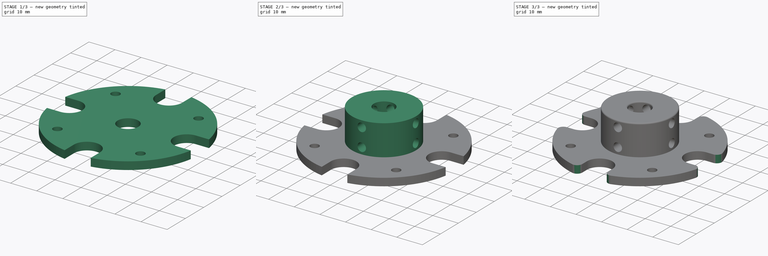
[diagram: build sequence overview — one tinted view per stage of 3, left to right]
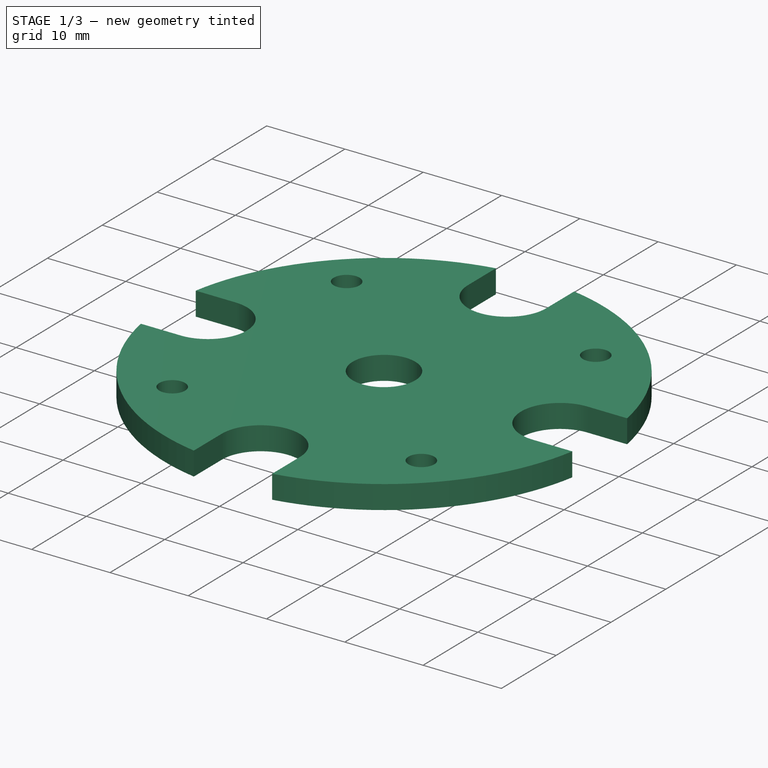
[diagram: stage 1 of 3 — iso view after this stage's code; geometry added in this stage tinted green]
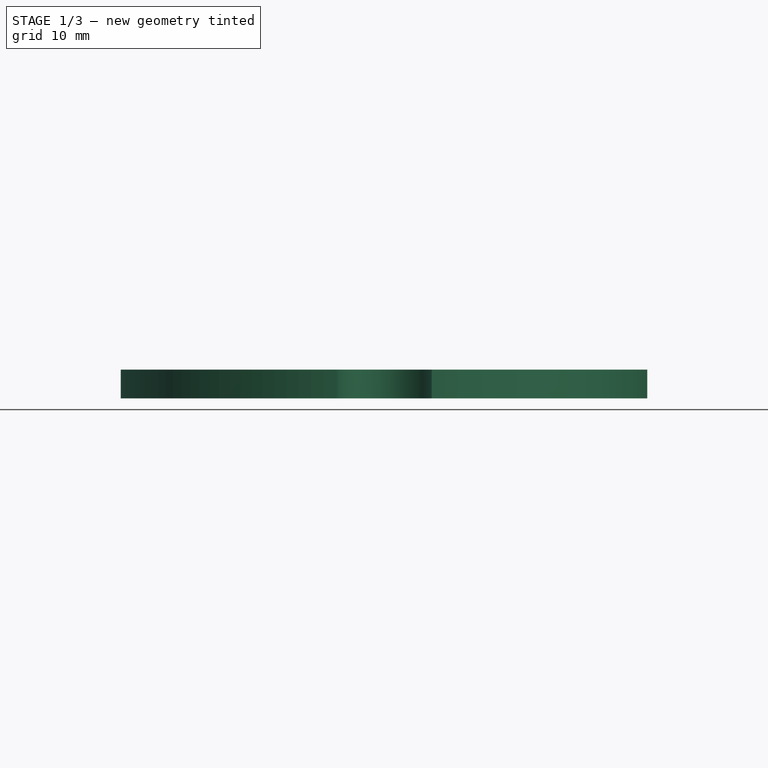
[diagram: stage 1 of 3 — front view after this stage's code; geometry added in this stage tinted green]
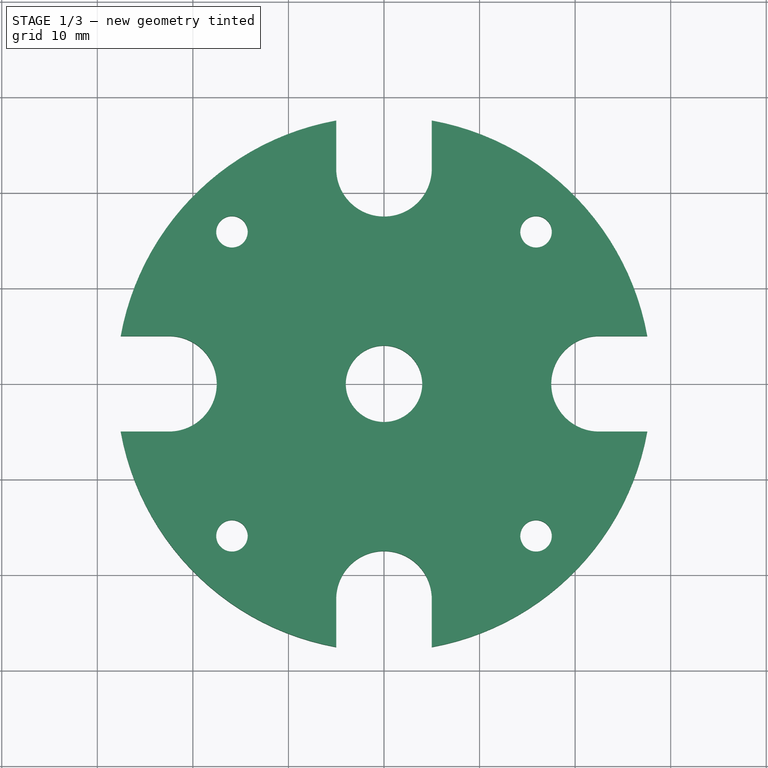
[diagram: stage 1 of 3 — top view after this stage's code; geometry added in this stage tinted green]
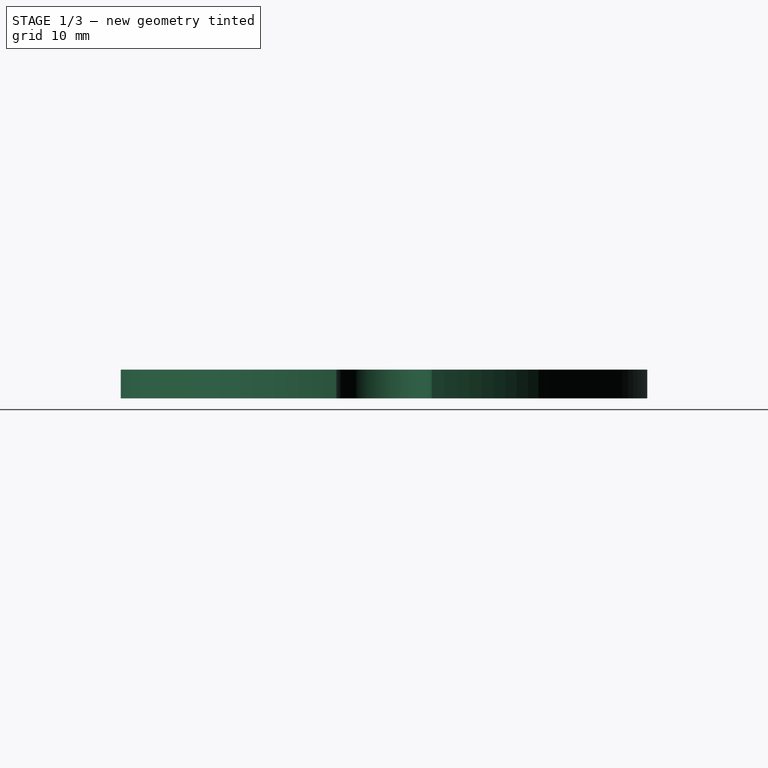
[diagram: stage 1 of 3 — right view after this stage's code; geometry added in this stage tinted green]
FCSTD DOCUMENT  (FreeCAD 0.19R19327 (Git))
Label: Acople motor2
License: All rights reserved
LicenseURL: http://en.wikipedia.org/wiki/All_rights_reserved
objects: Sketcher::SketchObject×4, PartDesign::Pad×2, PartDesign::Pocket×2, PartDesign::Fillet×2, PartDesign::PolarPattern×1, PartDesign::Plane×1, PartDesign::Body×1
note: 17 computed .brp shape members not serialized (recipe doc carries the construction recipe); baked Part::Feature solids carry a one-line shape summary decoded from their .brp

FEATURE [Sketcher::SketchObject] Sketch
  MapMode = 5
  Support = -> [XY_Plane]
  sketch-geometry (26):
    g0: ArcOfCircle CenterX=22.5 CenterY=0 CenterZ=0 NormalX=0 NormalY=0 NormalZ=1 AngleXU=0 Radius=5 StartAngle=1.5708 EndAngle=4.71239
    g1: ArcOfCircle CenterX=0 CenterY=-22.5 CenterZ=0 NormalX=0 NormalY=0 NormalZ=1 AngleXU=0 Radius=5 StartAngle=0 EndAngle=3.14159
    g2: LineSegment StartX=27.55 StartY=-5 StartZ=0 EndX=22.5 EndY=-5 EndZ=0
    g3: LineSegment StartX=5 StartY=-27.55 StartZ=0 EndX=5 EndY=-22.5 EndZ=0
    g4: Circle CenterX=15.9099 CenterY=-15.9099 CenterZ=0 NormalX=0 NormalY=0 NormalZ=1 AngleXU=0 Radius=1.65
    g5: ArcOfCircle CenterX=0 CenterY=0 CenterZ=0 NormalX=0 NormalY=0 NormalZ=1 AngleXU=0 Radius=28 StartAngle=1.75033 EndAngle=2.96206
    g6: LineSegment StartX=-5 StartY=-27.55 StartZ=0 EndX=-5 EndY=-22.5 EndZ=0
    g7: Circle CenterX=0 CenterY=0 CenterZ=0 NormalX=0 NormalY=0 NormalZ=1 AngleXU=0 Radius=4
    g8: LineSegment StartX=22.5 StartY=5 StartZ=0 EndX=27.55 EndY=5 EndZ=0
    g9: ArcOfCircle CenterX=0 CenterY=22.5 CenterZ=0 NormalX=0 NormalY=0 NormalZ=1 AngleXU=0 Radius=5 StartAngle=3.14159 EndAngle=6.28319
    g10: ArcOfCircle CenterX=-22.5 CenterY=0 CenterZ=0 NormalX=0 NormalY=0 NormalZ=1 AngleXU=0 Radius=5 StartAngle=4.71239 EndAngle=7.85398
    g11: Circle [constr] CenterX=0 CenterY=0 CenterZ=0 NormalX=0 NormalY=0 NormalZ=1 AngleXU=0 Radius=22.5
    g12: Circle CenterX=-15.9099 CenterY=-15.9099 CenterZ=0 NormalX=0 NormalY=0 NormalZ=1 AngleXU=0 Radius=1.65
    g13: Circle CenterX=-15.9099 CenterY=15.9099 CenterZ=0 NormalX=0 NormalY=0 NormalZ=1 AngleXU=0 Radius=1.65
    g14: Circle CenterX=15.9099 CenterY=15.9099 CenterZ=0 NormalX=0 NormalY=0 NormalZ=1 AngleXU=0 Radius=1.65
    g15: LineSegment StartX=-27.55 StartY=-5 StartZ=0 EndX=-22.5 EndY=-5 EndZ=0
    g16: LineSegment StartX=-27.55 StartY=5 StartZ=0 EndX=-22.5 EndY=5 EndZ=0
    g17: LineSegment StartX=-5 StartY=22.5 StartZ=0 EndX=-5 EndY=27.55 EndZ=0
    g18: LineSegment StartX=5 StartY=22.5 StartZ=0 EndX=5 EndY=27.55 EndZ=0
    g19: LineSegment [constr] StartX=15.9099 StartY=-15.9099 StartZ=0 EndX=-15.9099 EndY=-15.9099 EndZ=0
    g20: LineSegment [constr] StartX=-15.9099 StartY=-15.9099 StartZ=0 EndX=-15.9099 EndY=15.9099 EndZ=0
    g21: LineSegment [constr] StartX=-15.9099 StartY=15.9099 StartZ=0 EndX=15.9099 EndY=15.9099 EndZ=0
    g22: LineSegment [constr] StartX=15.9099 StartY=15.9099 StartZ=0 EndX=15.9099 EndY=-15.9099 EndZ=0
    g23: ArcOfCircle CenterX=0 CenterY=0 CenterZ=0 NormalX=0 NormalY=0 NormalZ=1 AngleXU=0 Radius=28 StartAngle=0.179534 EndAngle=1.39126
    g24: ArcOfCircle CenterX=0 CenterY=0 CenterZ=0 NormalX=0 NormalY=0 NormalZ=1 AngleXU=0 Radius=28 StartAngle=4.89192 EndAngle=6.10365
    g25: ArcOfCircle CenterX=0 CenterY=0 CenterZ=0 NormalX=0 NormalY=0 NormalZ=1 AngleXU=0 Radius=28 StartAngle=3.32113 EndAngle=4.53285
  constraints (70):
    c: Vertical(g3)
    c: Horizontal(g2)
    c: Radius(g1) = 5
    c: Radius(g0) = 5
    c: PointOnObject(g1,g-2)
    c: Tangent(g1,g3) = -1.5708
    c: Tangent(g0,g2) = 1.5708
    c: Radius(g4) = 1.65
    c: Radius(g5) = 28
    c: Vertical(g6)
    c: Equal(g3,g6)
    c: Coincident(g1,g6)
    c: Coincident(g7,g5)
    c: Radius(g7) = 4
    c: Horizontal(g8)
    c: Coincident(g0,g8)
    c: Equal(g2,g8)
    c: Coincident(g5,g-1)
    c: PointOnObject(g9,g-2)
    c: PointOnObject(g10,g-1)
    c: Coincident(g11,g5)
    c: PointOnObject(g10,g11)
    c: Radius(g11) = 22.5
    c: PointOnObject(g0,g-1)
    c: PointOnObject(g9,g11)
    c: PointOnObject(g0,g11)
    c: PointOnObject(g1,g11)
    c: PointOnObject(g12,g11)
    c: PointOnObject(g13,g11)
    c: PointOnObject(g14,g11)
    c: Equal(g14,g13)
    c: Equal(g13,g12)
    c: Equal(g12,g4)
    c: Horizontal(g15)
    c: Horizontal(g16)
    c: Tangent(g10,g16) = 1.5708
    c: Tangent(g10,g15) = -1.5708
    c: Equal(g10,g9)
    c: Equal(g9,g1)
    c: Vertical(g17)
    c: Vertical(g18)
    c: Tangent(g17,g9) = 1.5708
    c: Tangent(g9,g18) = -1.5708
    c: Coincident(g19,g20)
    c: Coincident(g20,g21)
    c: Coincident(g21,g22)
    c: Coincident(g22,g19)
    c: Horizontal(g19)
    c: Horizontal(g21)
    c: Vertical(g20)
    c: Vertical(g22)
    c: Coincident(g19,g4)
    c: Coincident(g20,g13)
    c: Coincident(g19,g12)
    c: Equal(g22,g21)
    c: Coincident(g14,g21)
    c: Coincident(g5,g17)
    c: Coincident(g23,g18)
    c: Equal(g5,g23)
    c: Coincident(g24,g2)
    c: Coincident(g23,g8)
    c: Coincident(g5,g23)
    c: Equal(g5,g24)
    c: Coincident(g25,g6)
    c: Coincident(g24,g3)
    c: Coincident(g5,g24)
    c: Equal(g5,g25)
    c: Coincident(g5,g16)
    c: Coincident(g25,g15)
    c: Coincident(g5,g25)
FEATURE [PartDesign::Pad] Pad
  Length = 3
  Length2 = 100
  Profile = -> Sketch
  Type = 0
FEATURE [PartDesign::PolarPattern] PolarPattern
  Angle = 360
  Axis = -> Sketch [N_Axis]
  BaseFeature = -> Pad
  Occurrences = 4
  Originals = -> [Pad]
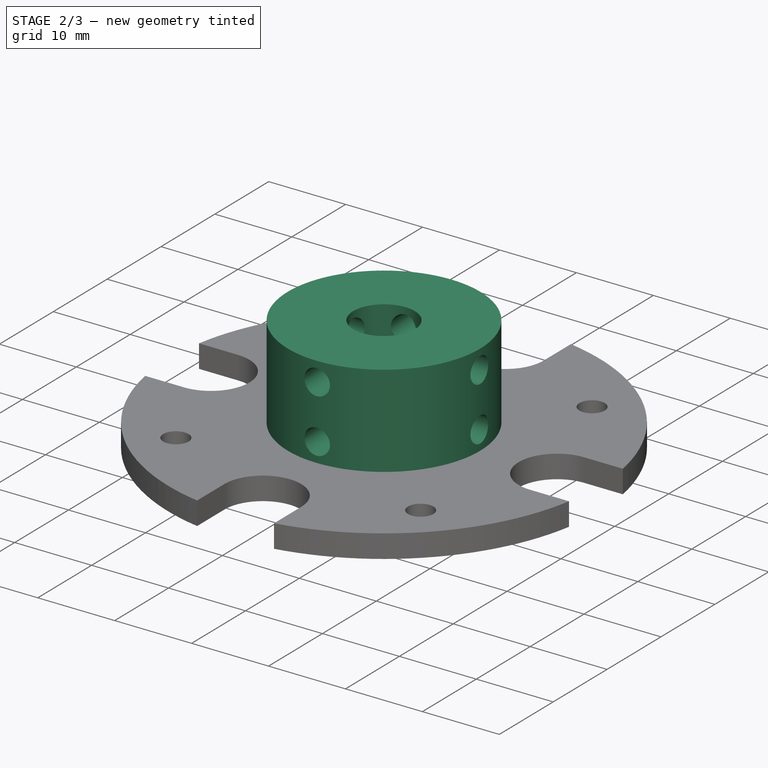
[diagram: stage 2 of 3 — iso view after this stage's code; geometry added in this stage tinted green]
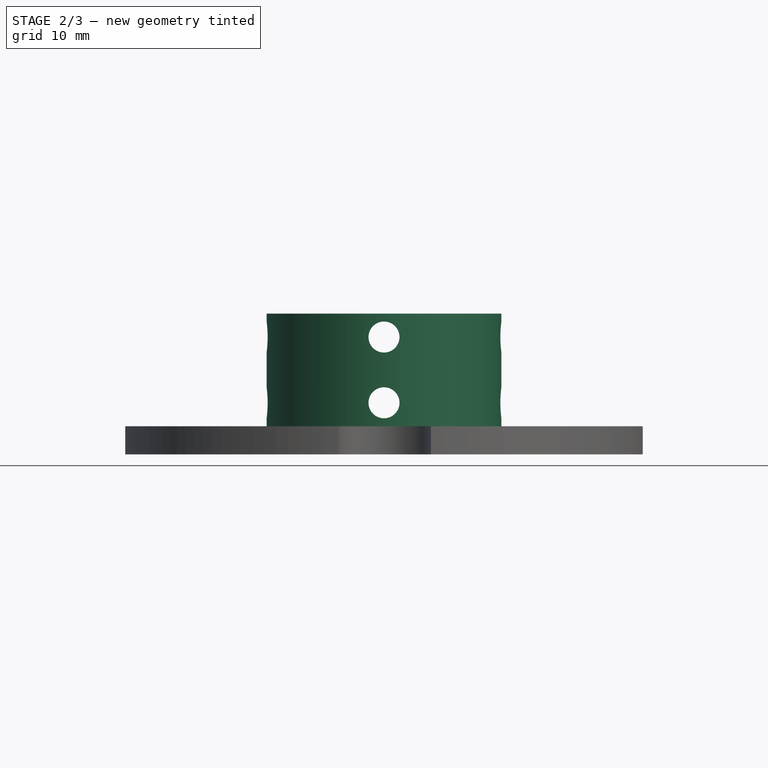
[diagram: stage 2 of 3 — front view after this stage's code; geometry added in this stage tinted green]
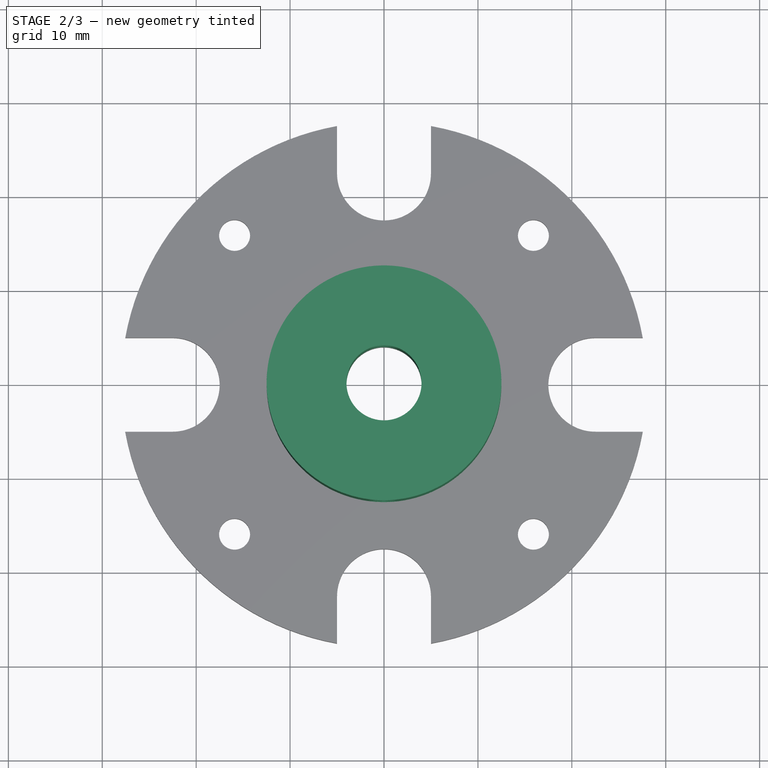
[diagram: stage 2 of 3 — top view after this stage's code; geometry added in this stage tinted green]
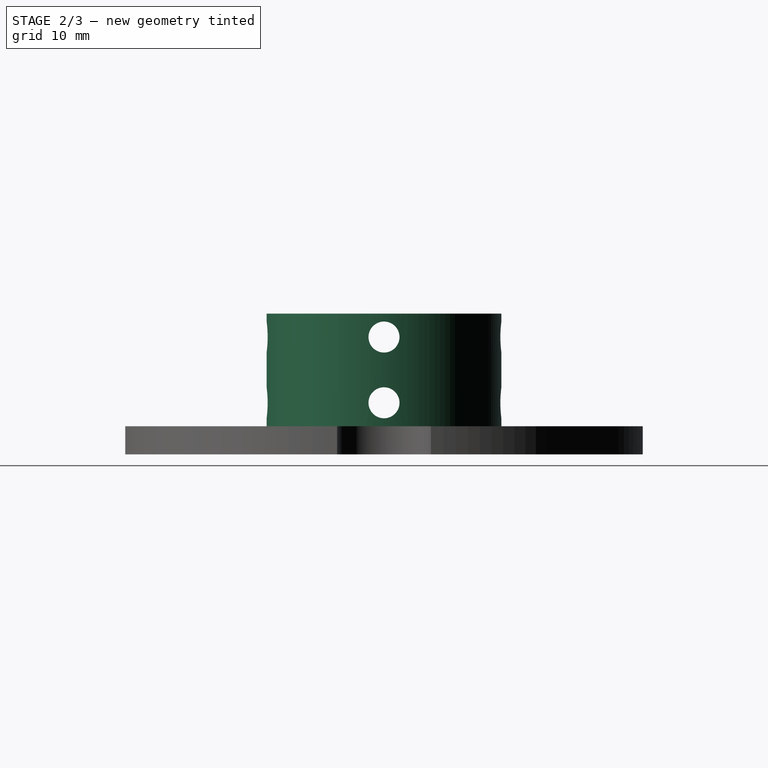
[diagram: stage 2 of 3 — right view after this stage's code; geometry added in this stage tinted green]
FEATURE [PartDesign::Plane] DatumPlane
  Length = 64.8917
  MapMode = 5
  Placement = pos=(0,0,3) rot=(0,0,1;0rad)
  ResizeMode = 0
  Support = -> [PolarPattern]
  Width = 64.8917
FEATURE [Sketcher::SketchObject] Sketch001
  MapMode = 5
  Placement = pos=(0,0,3) rot=(0,0,1;0rad)
  Support = -> [DatumPlane]
  sketch-geometry (2):
    g0: Circle CenterX=0 CenterY=0 CenterZ=0 NormalX=0 NormalY=0 NormalZ=1 AngleXU=0 Radius=12.5
    g1: Circle CenterX=0 CenterY=0 CenterZ=0 NormalX=0 NormalY=0 NormalZ=1 AngleXU=0 Radius=4
  constraints (4):
    c: Coincident(g0,g-1)
    c: Coincident(g1,g0)
    c: Radius(g0) = 12.5
    c: Radius(g1) = 4
FEATURE [PartDesign::Pad] Pad001
  BaseFeature = -> PolarPattern
  Length = 12
  Length2 = 100
  Profile = -> Sketch001
  Type = 0
FEATURE [Sketcher::SketchObject] Sketch002
  MapMode = 5
  Placement = pos=(0,0,0) rot=(1,0,0;1.5708rad)
  Support = -> [XZ_Plane]
  sketch-geometry (2):
    g0: Circle CenterX=0 CenterY=5.5 CenterZ=0 NormalX=0 NormalY=0 NormalZ=1 AngleXU=0 Radius=1.65
    g1: Circle CenterX=0 CenterY=12.5 CenterZ=0 NormalX=0 NormalY=0 NormalZ=1 AngleXU=0 Radius=1.65
  constraints (6):
    c: PointOnObject(g0,g-2)
    c: PointOnObject(g1,g-2)
    c: Equal(g1,g0)
    c: Radius(g1) = 1.65
    c: DistanceY(g0,g1) = 7
    c: DistanceY(g-1,g0) = 5.5
FEATURE [PartDesign::Pocket] Pocket
  BaseFeature = -> Pad001
  Length = 5
  Length2 = 100
  Midplane = true
  Profile = -> Sketch002
  Type = 1
FEATURE [Sketcher::SketchObject] Sketch003
  MapMode = 5
  Placement = pos=(0,0,0) rot=(0.57735,0.57735,0.57735;2.0944rad)
  Support = -> [YZ_Plane]
  sketch-geometry (2):
    g0: Circle CenterX=0 CenterY=5.5 CenterZ=0 NormalX=0 NormalY=0 NormalZ=1 AngleXU=0 Radius=1.65
    g1: Circle CenterX=0 CenterY=12.5 CenterZ=0 NormalX=0 NormalY=0 NormalZ=1 AngleXU=0 Radius=1.65
  constraints (6):
    c: PointOnObject(g0,g-2)
    c: PointOnObject(g1,g-2)
    c: Equal(g1,g0)
    c: Radius(g1) = 1.65
    c: DistanceY(g0,g1) = 7
    c: DistanceY(g-1,g0) = 5.5
FEATURE [PartDesign::Pocket] Pocket001
  BaseFeature = -> Pocket
  Length = 5
  Length2 = 100
  Midplane = true
  Profile = -> Sketch003
  Type = 1
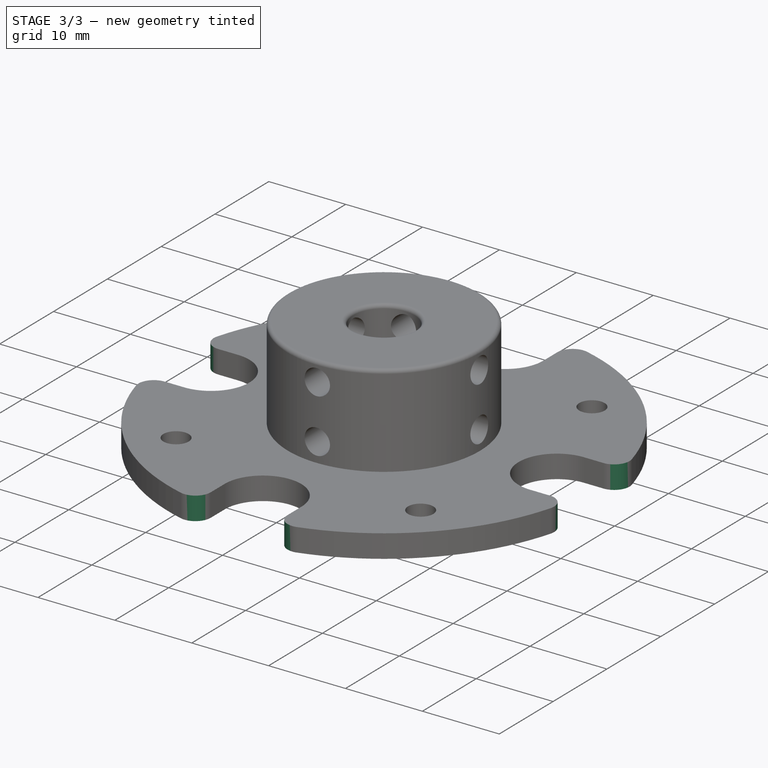
[diagram: stage 3 of 3 — iso view after this stage's code; geometry added in this stage tinted green]
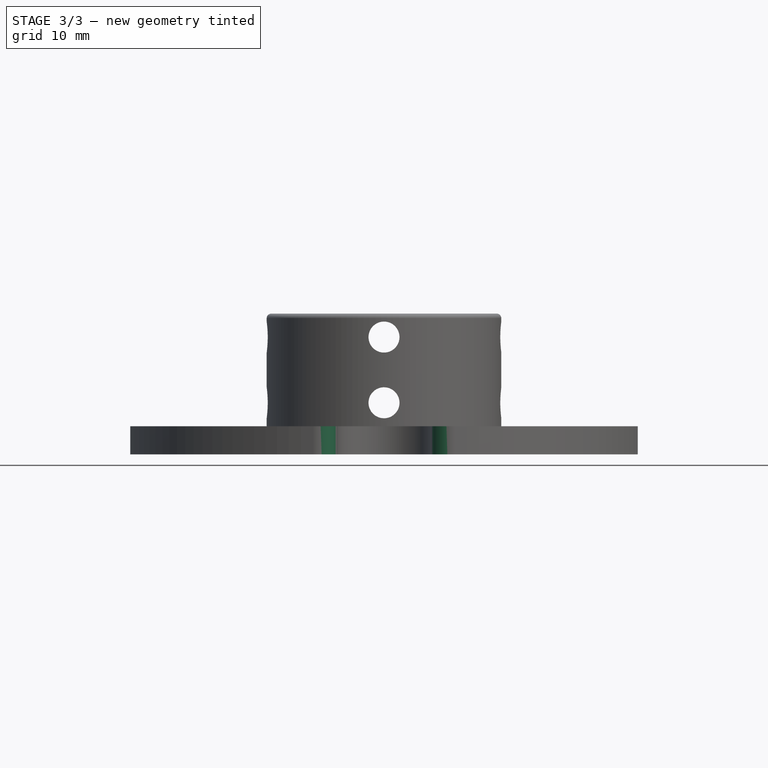
[diagram: stage 3 of 3 — front view after this stage's code; geometry added in this stage tinted green]
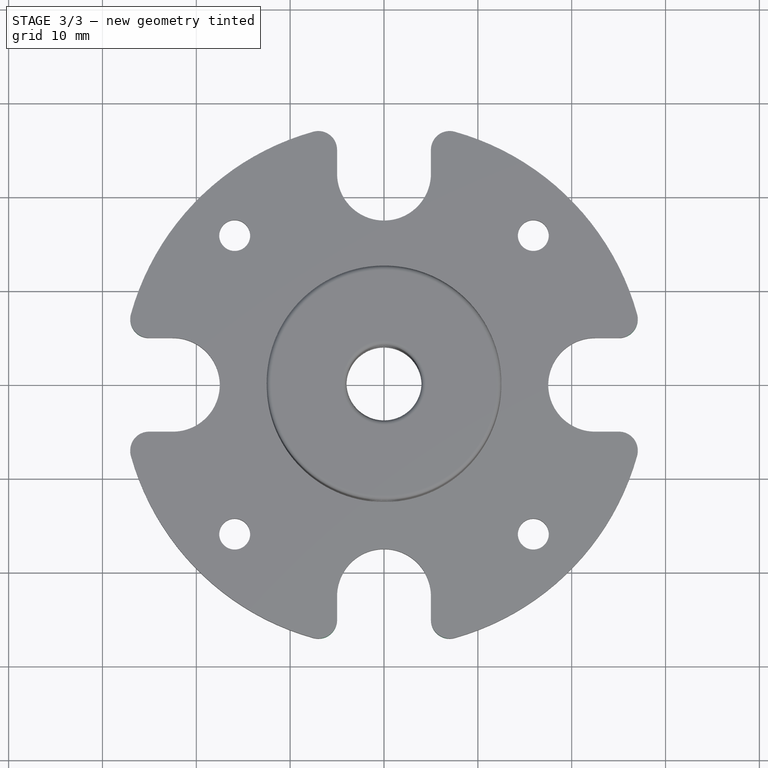
[diagram: stage 3 of 3 — top view after this stage's code; geometry added in this stage tinted green]
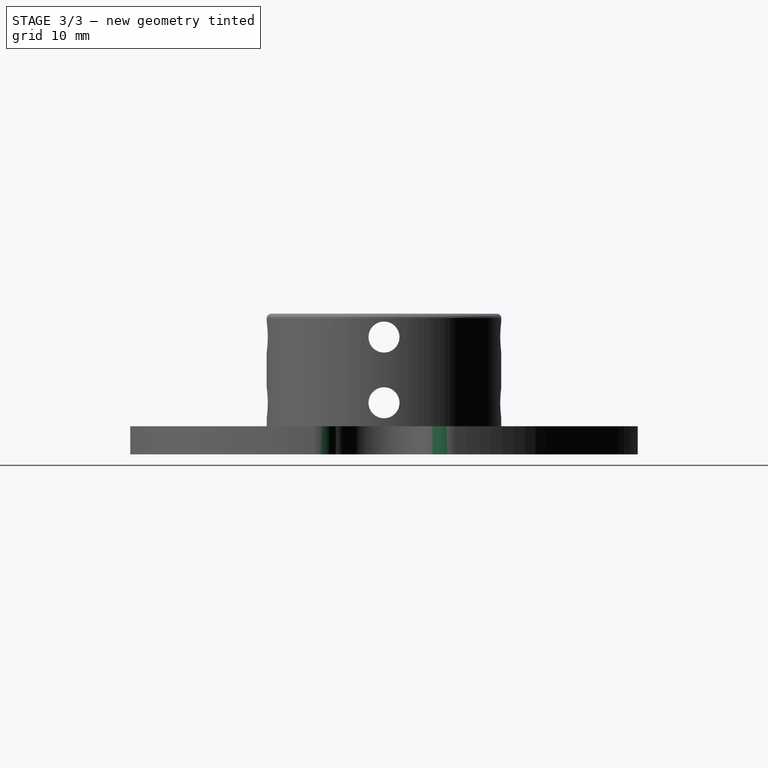
[diagram: stage 3 of 3 — right view after this stage's code; geometry added in this stage tinted green]
FEATURE [PartDesign::Fillet] Fillet
  Base = -> Pocket001 [Edge115,Edge131,Edge27,Edge24,Edge25,Edge26]
  BaseFeature = -> Pocket001
  Radius = 0.5
FEATURE [PartDesign::Fillet] Fillet001
  Base = -> Fillet [Edge52,Edge58,Edge60,Edge66,Edge50,Edge46,Edge74,Edge68]
  BaseFeature = -> Fillet
  Radius = 2
FEATURE [PartDesign::Body] Body
  Group = -> [Sketch,Pad,PolarPattern,DatumPlane,Sketch001,Pad001,Sketch002,Pocket,Sketch003,Pocket001,Fillet,Fillet001]
  Origin = -> Origin
  Tip = -> Fillet001
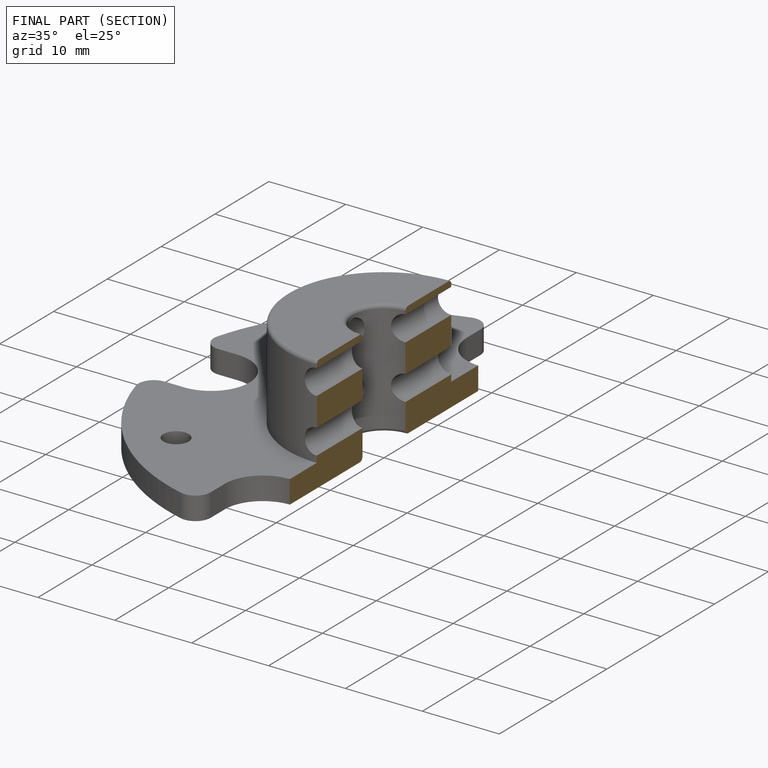
[diagram: finished part — half-section view (interior)]
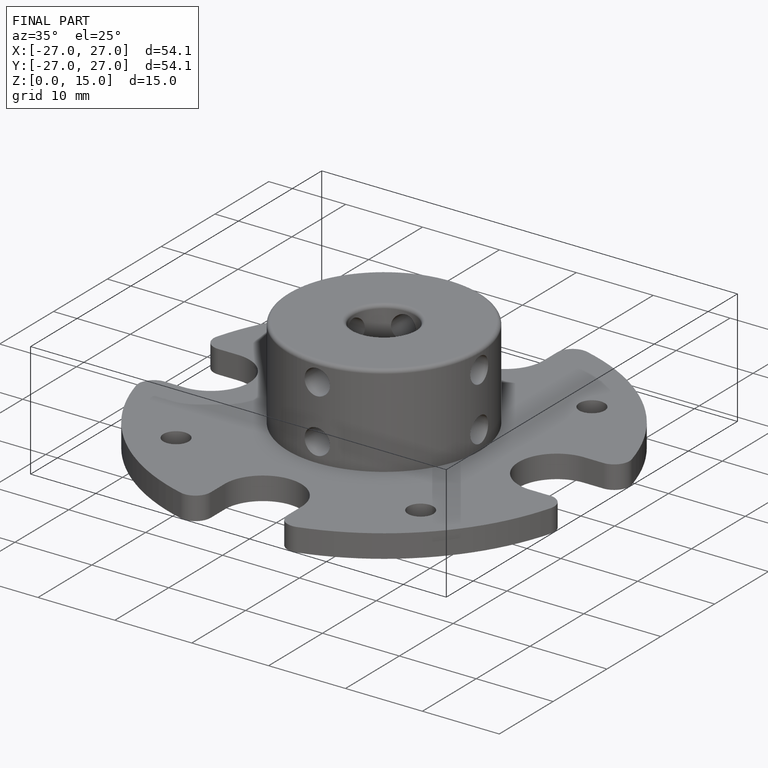
[diagram: finished part — iso view with bounding-box wireframe]
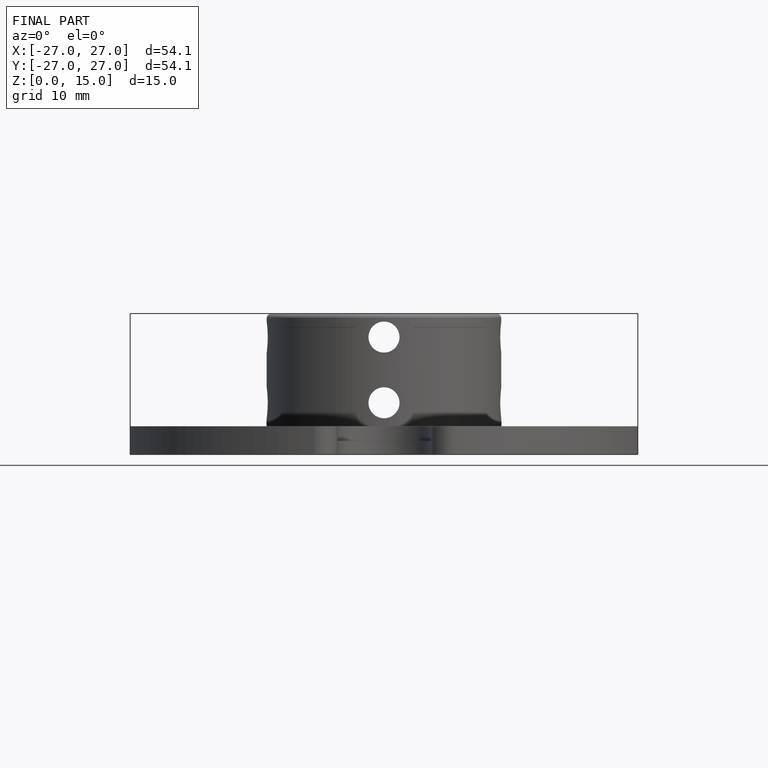
[diagram: finished part — front view with bounding-box wireframe]
